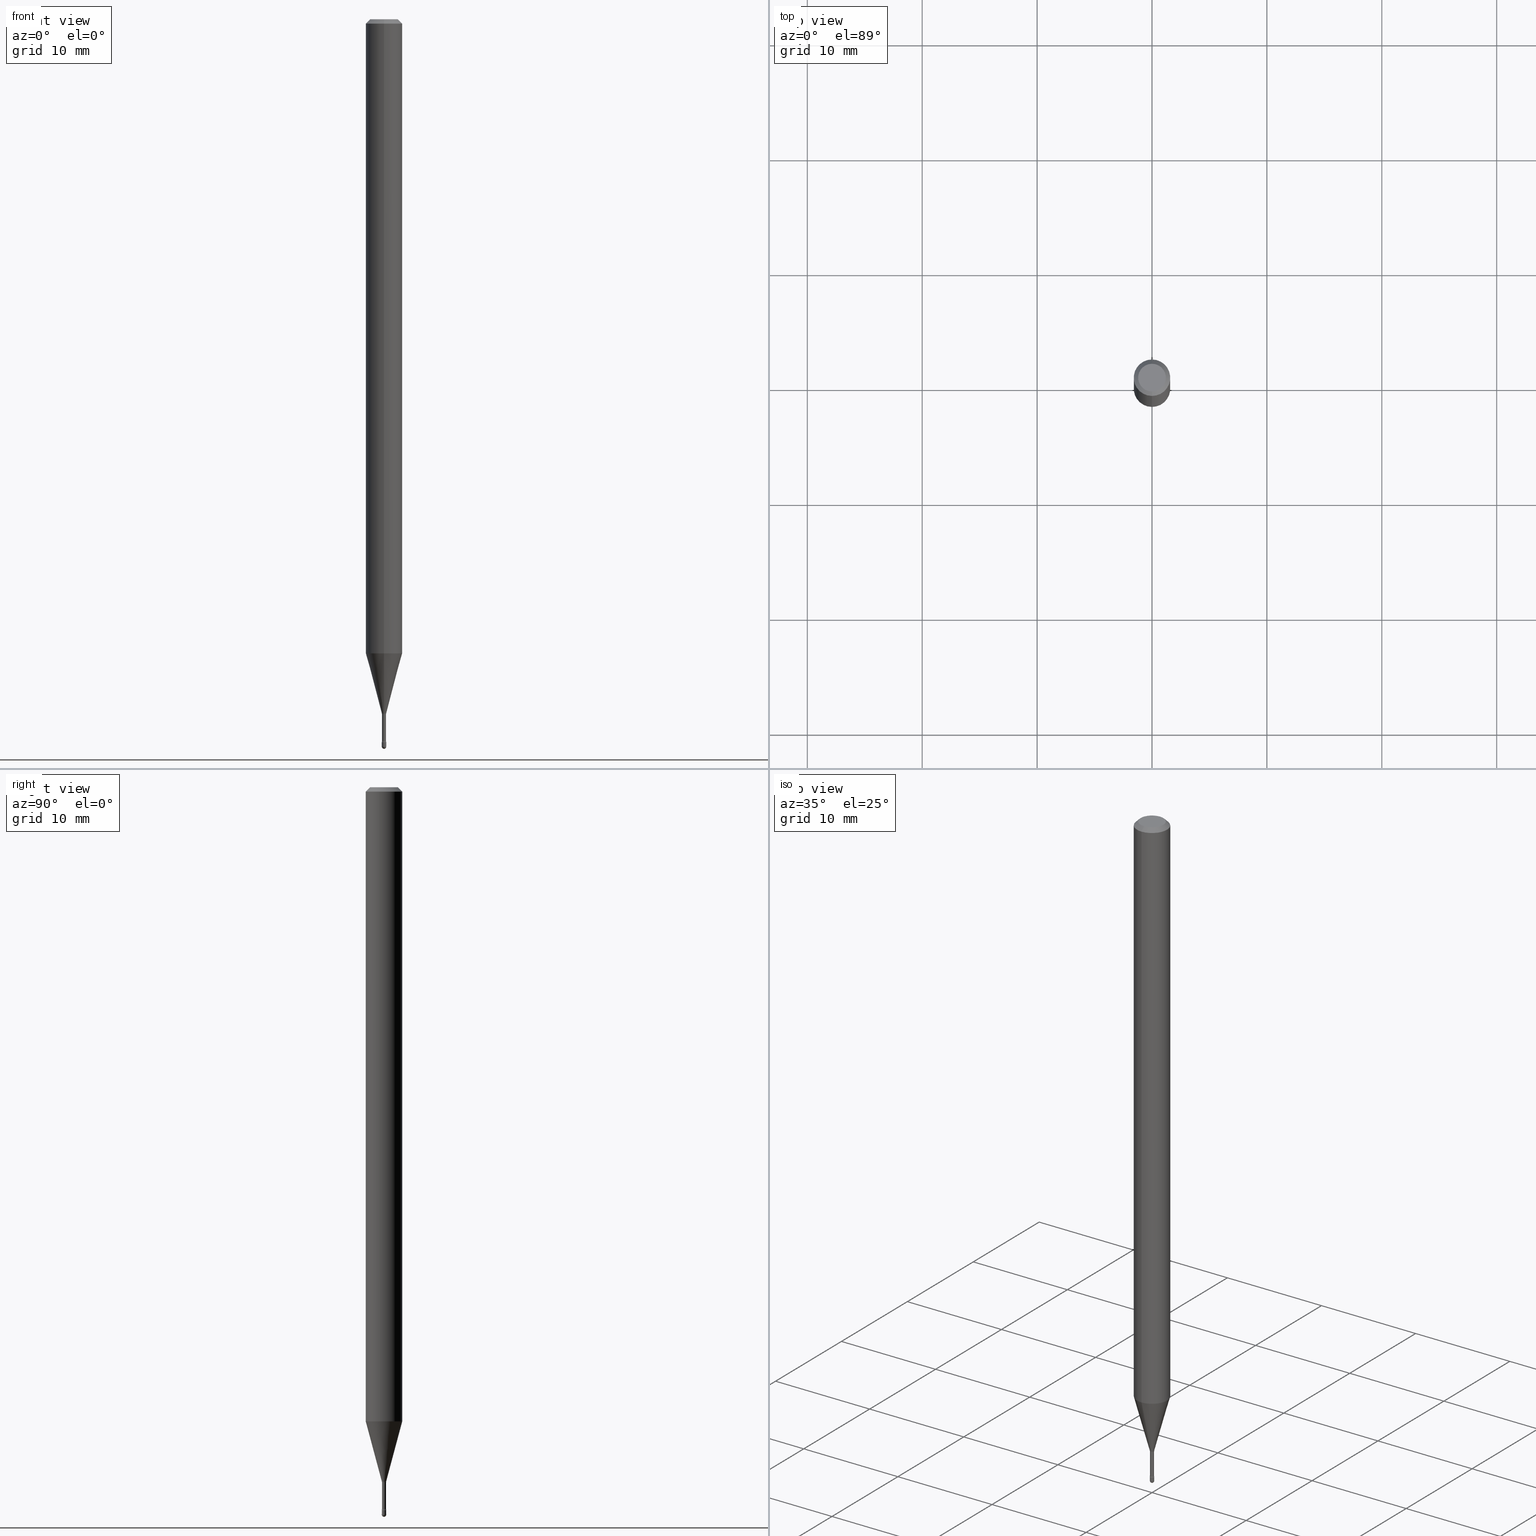
[diagram: canonical four-view strip — front | top / right | iso, engineering-drawing reading convention]
A machine part, canonical four-view strip (front | top / right | iso — engineering-drawing reading convention). The complete STEP part file that produces these views, byte-faithful:
ISO-10303-21;
HEADER;
FILE_DESCRIPTION (( 'STEP AP203' ),
    '1' );
FILE_NAME ('03860.STEP',
    '2024-04-09T20:48:26',
    ( '' ),
    ( '' ),
    'SwSTEP 2.0',
    'SolidWorks 2023',
    '' );
FILE_SCHEMA (( 'CONFIG_CONTROL_DESIGN' ));
ENDSEC;

DATA;
#1 = VERTEX_POINT ( 'NONE', #141 ) ;
#2 = CARTESIAN_POINT ( 'NONE',  ( 2.023716753937236139E-45, -2.888969696203218346E-31, -8.274856523414419713E-17 ) ) ;
#3 = ORIENTED_EDGE ( 'NONE', *, *, #173, .F. ) ;
#4 = CIRCLE ( 'NONE', #65, 0.01500000000000001506 ) ;
#5 = DIRECTION ( 'NONE',  ( 1.000000000000000000, -6.982962677686269077E-15, 0.000000000000000000 ) ) ;
#6 = AXIS2_PLACEMENT_3D ( 'NONE', #297, #158, #130 ) ;
#7 = EDGE_CURVE ( 'NONE', #132, #285, #483, .T. ) ;
#8 = ORIENTED_EDGE ( 'NONE', *, *, #457, .F. ) ;
#9 = CARTESIAN_POINT ( 'NONE',  ( -4.922988687768816941E-17, -0.007049999999999998976, 5.026881147764833957E-16 ) ) ;
#10 = FACE_OUTER_BOUND ( 'NONE', #553, .T. ) ;
#11 = CARTESIAN_POINT ( 'NONE',  ( 3.668237017753114858E-31, -5.237173592603730529E-17, -0.01500000000000008271 ) ) ;
#12 = CARTESIAN_POINT ( 'NONE',  ( -4.364351673553916201E-16, -0.06250000000000000000, 6.962889652497336499E-16 ) ) ;
#13 = CIRCLE ( 'NONE', #325, 0.01500000000000001853 ) ;
#14 = CARTESIAN_POINT ( 'NONE',  ( 6.095330999416453954E-29, -8.702517237066541600E-15, -2.492500000000000160 ) ) ;
#15 = ADVANCED_FACE ( 'NONE', ( #394 ), #513, .T. ) ;
#16 = DIRECTION ( 'NONE',  ( 1.000000000000000000, -6.982962677686268288E-15, 0.000000000000000000 ) ) ;
#17 = DIRECTION ( 'NONE',  ( -2.445468806185136597E-29, 3.491481338843145583E-15, 1.000000000000000000 ) ) ;
#18 = ORIENTED_EDGE ( 'NONE', *, *, #564, .F. ) ;
#19 = CALENDAR_DATE ( 2024, 9, 4 ) ;
#20 = DIRECTION ( 'NONE',  ( 7.105427357601000281E-15, 1.000000000000000000, 0.000000000000000000 ) ) ;
#21 = EDGE_CURVE ( 'NONE', #255, #26, #410, .T. ) ;
#22 = AXIS2_PLACEMENT_3D ( 'NONE', #388, #380, #241 ) ;
#23 = ORIENTED_EDGE ( 'NONE', *, *, #205, .F. ) ;
#24 = APPROVAL_STATUS ( 'not_yet_approved' ) ;
#25 = ORIENTED_EDGE ( 'NONE', *, *, #21, .F. ) ;
#26 = VERTEX_POINT ( 'NONE', #356 ) ;
#27 = ADVANCED_FACE ( 'NONE', ( #538 ), #220, .T. ) ;
#28 = DATE_AND_TIME ( #408, #137 ) ;
#29 = CIRCLE ( 'NONE', #310, 0.06250000000000000000 ) ;
#30 = DIRECTION ( 'NONE',  ( -6.982962677686265922E-15, -1.000000000000000000, 3.483106191921935554E-15 ) ) ;
#31 = AXIS2_PLACEMENT_3D ( 'NONE', #382, #170, #127 ) ;
#32 = ORIENTED_EDGE ( 'NONE', *, *, #480, .T. ) ;
#33 = DIRECTION ( 'NONE',  ( 1.000000000000000000, -6.982962677686266711E-15, 4.876176775795935793E-29 ) ) ;
#34 = CARTESIAN_POINT ( 'NONE',  ( -5.279896712707659243E-17, -0.007561112605672287539, -2.378092501787273161 ) ) ;
#35 = ORIENTED_EDGE ( 'NONE', *, *, #473, .T. ) ;
#36 = DIRECTION ( 'NONE',  ( -6.982962677686265133E-15, -1.000000000000000000, 0.000000000000000000 ) ) ;
#37 = CARTESIAN_POINT ( 'NONE',  ( 5.009326287108704966E-17, 0.007049999999999998976, 4.534586830060087308E-16 ) ) ;
#38 = EDGE_LOOP ( 'NONE', ( #427, #341, #143, #3, #315 ) ) ;
#39 = DIRECTION ( 'NONE',  ( -6.982962677686266711E-15, -1.000000000000000000, 0.000000000000000000 ) ) ;
#40 = CC_DESIGN_PERSON_AND_ORGANIZATION_ASSIGNMENT ( #258, #320, ( #59 ) ) ;
#41 = EDGE_CURVE ( 'NONE', #26, #233, #451, .T. ) ;
#42 = CIRCLE ( 'NONE', #534, 0.007049999999999997241 ) ;
#43 = DIRECTION ( 'NONE',  ( -1.807323732225327378E-15, -0.2588190451025177974, 0.9659258262890690894 ) ) ;
#44 = VERTEX_POINT ( 'NONE', #128 ) ;
#45 = AXIS2_PLACEMENT_3D ( 'NONE', #55, #120, #465 ) ;
#46 = APPROVAL_PERSON_ORGANIZATION ( #497, #392, #438 ) ;
#47 = CARTESIAN_POINT ( 'NONE',  ( 3.668237017753114858E-31, -5.237173592603730529E-17, -0.01500000000000008271 ) ) ;
#48 = DIRECTION ( 'NONE',  ( -2.445491345168729704E-29, 3.491449061735800993E-15, 1.000000000000000000 ) ) ;
#49 = DIRECTION ( 'NONE',  ( -7.105427357601001070E-15, -1.000000000000000000, 0.000000000000000000 ) ) ;
#50 = DIRECTION ( 'NONE',  ( 6.982962677686266711E-15, 1.000000000000000000, 0.000000000000000000 ) ) ;
#51 = CARTESIAN_POINT ( 'NONE',  ( 6.095330999416453954E-29, -8.702517237066541600E-15, -2.492500000000000160 ) ) ;
#52 = DIRECTION ( 'NONE',  ( -6.982962677686265922E-15, -1.000000000000000000, 0.000000000000000000 ) ) ;
#53 = VECTOR ( 'NONE', #268, 39.37007874015748143 ) ;
#54 = LOCAL_TIME ( 16, 48, 26.00000000000000000, #316 ) ;
#55 = CARTESIAN_POINT ( 'NONE',  ( -1.169113584055446105E-44, 1.669184350826100908E-30, 4.780733988912460139E-16 ) ) ;
#56 = APPLICATION_CONTEXT ( 'configuration controlled 3d designs of mechanical parts and assemblies' ) ;
#57 =( NAMED_UNIT ( * ) SI_UNIT ( $, .STERADIAN. ) SOLID_ANGLE_UNIT ( ) );
#58 = DIRECTION ( 'NONE',  ( 6.982962677686265922E-15, 1.000000000000000000, -3.483106191921935554E-15 ) ) ;
#59 = PRODUCT ( '03860', '03860', '', ( #468 ) ) ;
#60 = CARTESIAN_POINT ( 'NONE',  ( 6.057426232920582713E-29, -8.648399276314471045E-15, -2.476999999999999869 ) ) ;
#62 = ADVANCED_FACE ( 'NONE', ( #202 ), #209, .T. ) ;
#61 = DATE_AND_TIME ( #186, #544 ) ;
#63 = CARTESIAN_POINT ( 'NONE',  ( 5.009326287114755776E-17, 0.007049999999991685314, -2.381974787463811083 ) ) ;
#64 = UNCERTAINTY_MEASURE_WITH_UNIT (LENGTH_MEASURE( 1.000000000000000082E-05 ), #429, 'distance_accuracy_value', 'NONE');
#65 = AXIS2_PLACEMENT_3D ( 'NONE', #275, #397, #20 ) ;
#66 = DATE_AND_TIME ( #441, #309 ) ;
#67 = FACE_OUTER_BOUND ( 'NONE', #294, .T. ) ;
#68 = VERTEX_POINT ( 'NONE', #507 ) ;
#69 = PERSON_AND_ORGANIZATION ( #190, #386 ) ;
#70 = ADVANCED_FACE ( 'NONE', ( #511 ), #317, .F. ) ;
#71 = CARTESIAN_POINT ( 'NONE',  ( 5.815604631131429180E-29, -8.302988834086117916E-15, -2.378092501787273161 ) ) ;
#72 = APPROVAL_STATUS ( 'not_yet_approved' ) ;
#73 = AXIS2_PLACEMENT_3D ( 'NONE', #505, #464, #211 ) ;
#74 = EDGE_LOOP ( 'NONE', ( #365, #18, #381, #504 ) ) ;
#75 = APPROVAL_STATUS ( 'not_yet_approved' ) ;
#76 = CIRCLE ( 'NONE', #254, 0.007050000000000001578 ) ;
#77 = LINE ( 'NONE', #518, #101 ) ;
#78 = AXIS2_PLACEMENT_3D ( 'NONE', #112, #354, #146 ) ;
#79 = AXIS2_PLACEMENT_3D ( 'NONE', #423, #344, #171 ) ;
#80 = EDGE_LOOP ( 'NONE', ( #89, #439, #283, #238 ) ) ;
#81 = CYLINDRICAL_SURFACE ( 'NONE', #481, 0.007499999999999998855 ) ;
#82 = DIRECTION ( 'NONE',  ( -2.445491345168729704E-29, 3.491449061735800993E-15, 1.000000000000000000 ) ) ;
#83 = CYLINDRICAL_SURFACE ( 'NONE', #235, 0.007499999999999998855 ) ;
#84 = ORIENTED_EDGE ( 'NONE', *, *, #205, .T. ) ;
#85 = CARTESIAN_POINT ( 'NONE',  ( 5.825045039862220002E-29, -8.316620520024762877E-15, -2.381974787463811083 ) ) ;
#86 = ADVANCED_FACE ( 'NONE', ( #169 ), #134, .T. ) ;
#87 = CARTESIAN_POINT ( 'NONE',  ( -1.169113584055446105E-44, 1.669184350826100908E-30, 4.780733988912460139E-16 ) ) ;
#88 = ADVANCED_BREP_SHAPE_REPRESENTATION ( '03860', ( #244, #436, #557 ), #237 ) ;
#89 = ORIENTED_EDGE ( 'NONE', *, *, #480, .F. ) ;
#90 = DIRECTION ( 'NONE',  ( -6.982962677686265922E-15, -1.000000000000000000, 3.491449061735800993E-15 ) ) ;
#91 = ORIENTED_EDGE ( 'NONE', *, *, #105, .F. ) ;
#92 = CIRCLE ( 'NONE', #154, 0.007499999999999999722 ) ;
#93 = CARTESIAN_POINT ( 'NONE',  ( -5.237222008258649100E-17, -0.007500000000008655125, -2.476999999999999869 ) ) ;
#94 = TOROIDAL_SURFACE ( 'NONE', #213, 0.02205000000000000016, 0.01500000000000002200 ) ;
#95 = CARTESIAN_POINT ( 'NONE',  ( -4.364351673553912750E-16, -0.06250000000000005551, -0.01499999999999986587 ) ) ;
#96 = CARTESIAN_POINT ( 'NONE',  ( 5.815604631131429180E-29, -8.302988834086117916E-15, -2.378092501787273161 ) ) ;
#97 = CARTESIAN_POINT ( 'NONE',  ( 3.316907271900976096E-16, 0.04749999999999999362, 3.181858639610035580E-17 ) ) ;
#98 = CARTESIAN_POINT ( 'NONE',  ( 0.007499999999999998855, -8.727830476773153796E-15, -2.492500000000000160 ) ) ;
#99 = CARTESIAN_POINT ( 'NONE',  ( 6.048564397476087281E-29, -8.635587499476257127E-15, -2.473353426265656907 ) ) ;
#100 = CLOSED_SHELL ( 'NONE', ( #70, #118, #269, #15, #27, #261, #252, #360, #218, #373, #197, #453, #62, #393 ) ) ;
#101 = VECTOR ( 'NONE', #168, 39.37007874015748143 ) ;
#102 = DIRECTION ( 'NONE',  ( -6.982962677686265922E-15, -1.000000000000000000, 3.491449061735800993E-15 ) ) ;
#103 = DIRECTION ( 'NONE',  ( 1.000000000000000000, -7.105427357601001070E-15, 4.926315113261520670E-29 ) ) ;
#104 = CARTESIAN_POINT ( 'NONE',  ( 5.815604631131429180E-29, -8.302988834086117916E-15, -2.378092501787273161 ) ) ;
#105 = EDGE_CURVE ( 'NONE', #251, #406, #460, .T. ) ;
#106 = COORDINATED_UNIVERSAL_TIME_OFFSET ( 5, 0, .BEHIND. ) ;
#107 = DIRECTION ( 'NONE',  ( -2.445491345168729704E-29, 3.491449061735800993E-15, 1.000000000000000000 ) ) ;
#108 = CARTESIAN_POINT ( 'NONE',  ( -5.329070518194628897E-17, -0.007500000000008663799, -2.492500000000000160 ) ) ;
#109 = AXIS2_PLACEMENT_3D ( 'NONE', #96, #387, #52 ) ;
#110 = PRODUCT_DEFINITION ( 'UNKNOWN', '', #378, #533 ) ;
#111 = EDGE_CURVE ( 'NONE', #370, #566, #29, .T. ) ;
#112 = CARTESIAN_POINT ( 'NONE',  ( 2.023716753937236139E-45, -2.888969696203218346E-31, -8.274856523414419713E-17 ) ) ;
#113 = APPLICATION_PROTOCOL_DEFINITION ( 'international standard', 'config_control_design', 1994, #56 ) ;
#114 = ORIENTED_EDGE ( 'NONE', *, *, #501, .T. ) ;
#115 = PERSON_AND_ORGANIZATION ( #190, #386 ) ;
#116 = VECTOR ( 'NONE', #563, 39.37007874015748143 ) ;
#117 = ORIENTED_EDGE ( 'NONE', *, *, #457, .T. ) ;
#118 = ADVANCED_FACE ( 'NONE', ( #332 ), #456, .T. ) ;
#119 = ORIENTED_EDGE ( 'NONE', *, *, #206, .T. ) ;
#120 = DIRECTION ( 'NONE',  ( -2.445491345168729704E-29, 3.491449061735800993E-15, 1.000000000000000000 ) ) ;
#121 = DIRECTION ( 'NONE',  ( -2.445468806185136597E-29, 3.491481338843145583E-15, 1.000000000000000000 ) ) ;
#122 = DIRECTION ( 'NONE',  ( -2.438088387897960049E-29, 3.491481338843145188E-15, 1.000000000000000000 ) ) ;
#123 = VECTOR ( 'NONE', #191, 39.37007874015748143 ) ;
#124 = CARTESIAN_POINT ( 'NONE',  ( 5.314194000194058703E-29, -7.587120556576491989E-15, -2.173057782720305919 ) ) ;
#125 = EDGE_CURVE ( 'NONE', #401, #330, #542, .T. ) ;
#126 = ORIENTED_EDGE ( 'NONE', *, *, #277, .T. ) ;
#127 = DIRECTION ( 'NONE',  ( 6.982962677686265922E-15, 1.000000000000000000, 0.000000000000000000 ) ) ;
#128 = CARTESIAN_POINT ( 'NONE',  ( -4.364351673553386185E-16, -0.06250000000000759115, -2.173057782720305919 ) ) ;
#129 = ORIENTED_EDGE ( 'NONE', *, *, #367, .F. ) ;
#130 = DIRECTION ( 'NONE',  ( -6.982962677686265922E-15, -1.000000000000000000, 0.000000000000000000 ) ) ;
#131 = DIRECTION ( 'NONE',  ( 1.000000000000000000, 0.000000000000000000, 0.000000000000000000 ) ) ;
#132 = VERTEX_POINT ( 'NONE', #476 ) ;
#133 = VECTOR ( 'NONE', #431, 39.37007874015748143 ) ;
#134 = SPHERICAL_SURFACE ( 'NONE', #236, 0.007499999999999925129 ) ;
#135 =( NAMED_UNIT ( * ) PLANE_ANGLE_UNIT ( ) SI_UNIT ( $, .RADIAN. ) );
#136 = FACE_OUTER_BOUND ( 'NONE', #508, .T. ) ;
#137 = LOCAL_TIME ( 16, 48, 26.00000000000000000, #510 ) ;
#138 = EDGE_CURVE ( 'NONE', #330, #44, #555, .T. ) ;
#139 = PLANE ( 'NONE',  #403 ) ;
#140 = DIRECTION ( 'NONE',  ( 1.000000000000000000, -6.982962677686269077E-15, 0.000000000000000000 ) ) ;
#141 = CARTESIAN_POINT ( 'NONE',  ( 4.440892098501156671E-16, 0.06249999999999240885, -2.173057782720306363 ) ) ;
#142 = DIRECTION ( 'NONE',  ( -2.445491345168729704E-29, 3.491449061735800993E-15, 1.000000000000000000 ) ) ;
#143 = ORIENTED_EDGE ( 'NONE', *, *, #313, .F. ) ;
#144 = PERSON_AND_ORGANIZATION ( #190, #386 ) ;
#145 = AXIS2_PLACEMENT_3D ( 'NONE', #414, #82, #248 ) ;
#146 = DIRECTION ( 'NONE',  ( -6.982962677686266711E-15, -1.000000000000000000, 3.491449061735801387E-15 ) ) ;
#147 = ORIENTED_EDGE ( 'NONE', *, *, #180, .F. ) ;
#148 = COORDINATED_UNIVERSAL_TIME_OFFSET ( 5, 0, .BEHIND. ) ;
#149 = ORIENTED_EDGE ( 'NONE', *, *, #153, .F. ) ;
#150 = PERSON_AND_ORGANIZATION_ROLE ( 'design_supplier' ) ;
#151 = CARTESIAN_POINT ( 'NONE',  ( 6.095330999416453954E-29, -8.702517237066541600E-15, -2.492500000000000160 ) ) ;
#152 = ORIENTED_EDGE ( 'NONE', *, *, #306, .F. ) ;
#153 = EDGE_CURVE ( 'NONE', #1, #44, #192, .T. ) ;
#154 = AXIS2_PLACEMENT_3D ( 'NONE', #60, #17, #347 ) ;
#155 = DIRECTION ( 'NONE',  ( 1.000000000000000000, -6.982962677686269077E-15, 0.000000000000000000 ) ) ;
#156 = FACE_OUTER_BOUND ( 'NONE', #38, .T. ) ;
#157 = VERTEX_POINT ( 'NONE', #98 ) ;
#158 = DIRECTION ( 'NONE',  ( -2.445491345168729704E-29, 3.491449061735800993E-15, 1.000000000000000000 ) ) ;
#159 = EDGE_CURVE ( 'NONE', #285, #324, #263, .T. ) ;
#160 = CARTESIAN_POINT ( 'NONE',  ( 6.095330999416453954E-29, -8.702517237066541600E-15, -2.492500000000000160 ) ) ;
#161 = ORIENTED_EDGE ( 'NONE', *, *, #173, .T. ) ;
#162 = CARTESIAN_POINT ( 'NONE',  ( 5.825098727152874033E-29, -8.316543636768855884E-15, -2.381974787463811083 ) ) ;
#163 = CIRCLE ( 'NONE', #351, 0.007050000000000001578 ) ;
#164 = AXIS2_PLACEMENT_3D ( 'NONE', #485, #391, #140 ) ;
#165 = DIRECTION ( 'NONE',  ( -2.445491345168729704E-29, 3.491449061735800993E-15, 1.000000000000000000 ) ) ;
#166 = CIRCLE ( 'NONE', #6, 0.007499999999999999722 ) ;
#167 = EDGE_LOOP ( 'NONE', ( #338, #496 ) ) ;
#168 = DIRECTION ( 'NONE',  ( 4.937700262164548042E-15, 0.7071067811865451302, -0.7071067811865499042 ) ) ;
#169 = FACE_OUTER_BOUND ( 'NONE', #80, .T. ) ;
#170 = DIRECTION ( 'NONE',  ( -1.000000000000000000, 6.982962677686265922E-15, -4.883557194083112901E-29 ) ) ;
#171 = DIRECTION ( 'NONE',  ( -6.982962677686265922E-15, -1.000000000000000000, 3.491449061735801387E-15 ) ) ;
#172 = VERTEX_POINT ( 'NONE', #374 ) ;
#173 = EDGE_CURVE ( 'NONE', #157, #172, #179, .T. ) ;
#174 = AXIS2_PLACEMENT_3D ( 'NONE', #558, #165, #346 ) ;
#175 = CIRCLE ( 'NONE', #215, 0.01500000000000001853 ) ;
#176 = CYLINDRICAL_SURFACE ( 'NONE', #79, 0.06250000000000000000 ) ;
#177 = DIMENSIONAL_EXPONENTS ( 1.000000000000000000, 0.000000000000000000, 0.000000000000000000, 0.000000000000000000, 0.000000000000000000, 0.000000000000000000, 0.000000000000000000 ) ;
#178 = DIRECTION ( 'NONE',  ( 1.839019923739597160E-15, 0.2588190451025245142, 0.9659258262890670910 ) ) ;
#179 = LINE ( 'NONE', #526, #133 ) ;
#180 = EDGE_CURVE ( 'NONE', #132, #474, #222, .T. ) ;
#181 = CARTESIAN_POINT ( 'NONE',  ( -0.007499999999999998855, -8.622167551508499156E-15, -2.492500000000000160 ) ) ;
#182 = DIRECTION ( 'NONE',  ( 2.445491345168729704E-29, -3.491449061735800993E-15, -1.000000000000000000 ) ) ;
#183 = CONICAL_SURFACE ( 'NONE', #472, 0.06250000000000000000, 0.7853981633974483900 ) ;
#184 = AXIS2_PLACEMENT_3D ( 'NONE', #2, #48, #430 ) ;
#185 = DIRECTION ( 'NONE',  ( 2.445491345168729704E-29, -3.491449061735800993E-15, -1.000000000000000000 ) ) ;
#186 = CALENDAR_DATE ( 2024, 9, 4 ) ;
#187 = DIRECTION ( 'NONE',  ( 1.000000000000000000, -6.982962677686265922E-15, 4.883557194083112340E-29 ) ) ;
#188 = CC_DESIGN_PERSON_AND_ORGANIZATION_ASSIGNMENT ( #540, #234, ( #110 ) ) ;
#189 = CALENDAR_DATE ( 2024, 9, 4 ) ;
#190 = PERSON ( 'UNSPECIFIED', 'UNSPECIFIED', 'UNSPECIFIED', ('UNSPECIFIED'), ('UNSPECIFIED'), ('UNSPECIFIED') ) ;
#191 = DIRECTION ( 'NONE',  ( -2.445491345168729704E-29, 3.491449061735800993E-15, 1.000000000000000000 ) ) ;
#192 = CIRCLE ( 'NONE', #336, 0.06250000000000000000 ) ;
#193 = DIRECTION ( 'NONE',  ( -6.982962677686265922E-15, -1.000000000000000000, 0.000000000000000000 ) ) ;
#194 = APPROVAL_PERSON_ORGANIZATION ( #69, #364, #413 ) ;
#195 = ORIENTED_EDGE ( 'NONE', *, *, #223, .F. ) ;
#196 = ORIENTED_EDGE ( 'NONE', *, *, #322, .F. ) ;
#197 = ADVANCED_FACE ( 'NONE', ( #10 ), #139, .F. ) ;
#198 = ORIENTED_EDGE ( 'NONE', *, *, #306, .T. ) ;
#199 = CARTESIAN_POINT ( 'NONE',  ( -1.169113584055446105E-44, 1.669184350826100908E-30, 4.780733988912460139E-16 ) ) ;
#200 = VECTOR ( 'NONE', #43, 39.37007874015748143 ) ;
#201 = ORIENTED_EDGE ( 'NONE', *, *, #7, .T. ) ;
#202 = FACE_OUTER_BOUND ( 'NONE', #469, .T. ) ;
#203 = ORIENTED_EDGE ( 'NONE', *, *, #458, .T. ) ;
#204 = PLANE ( 'NONE',  #342 ) ;
#205 = EDGE_CURVE ( 'NONE', #285, #251, #4, .T. ) ;
#206 = EDGE_CURVE ( 'NONE', #340, #157, #424, .T. ) ;
#207 = ORIENTED_EDGE ( 'NONE', *, *, #528, .F. ) ;
#208 = DIRECTION ( 'NONE',  ( -2.445491345168729704E-29, 3.491449061735800993E-15, 1.000000000000000000 ) ) ;
#209 = CYLINDRICAL_SURFACE ( 'NONE', #45, 0.007049999999999998976 ) ;
#210 = ORIENTED_EDGE ( 'NONE', *, *, #298, .F. ) ;
#211 = DIRECTION ( 'NONE',  ( -6.982962677686265922E-15, -1.000000000000000000, 3.491449061735800993E-15 ) ) ;
#212 = DIRECTION ( 'NONE',  ( -2.445468806185136597E-29, 3.491481338843145583E-15, 1.000000000000000000 ) ) ;
#213 = AXIS2_PLACEMENT_3D ( 'NONE', #85, #554, #90 ) ;
#214 = CIRCLE ( 'NONE', #78, 0.04749999999999999362 ) ;
#215 = AXIS2_PLACEMENT_3D ( 'NONE', #299, #103, #343 ) ;
#216 = ORIENTED_EDGE ( 'NONE', *, *, #551, .T. ) ;
#217 = DIRECTION ( 'NONE',  ( 0.000000000000000000, 0.000000000000000000, 1.000000000000000000 ) ) ;
#218 = ADVANCED_FACE ( 'NONE', ( #541 ), #183, .T. ) ;
#219 = ORIENTED_EDGE ( 'NONE', *, *, #159, .T. ) ;
#220 = CYLINDRICAL_SURFACE ( 'NONE', #560, 0.06250000000000000000 ) ;
#221 = CONICAL_SURFACE ( 'NONE', #523, 0.007561112605663984285, 0.2617993877991498519 ) ;
#222 = LINE ( 'NONE', #9, #377 ) ;
#223 = EDGE_CURVE ( 'NONE', #530, #68, #214, .T. ) ;
#224 = CARTESIAN_POINT ( 'NONE',  ( 3.668237017753114858E-31, -5.237173592603730529E-17, -0.01500000000000008271 ) ) ;
#225 = DIRECTION ( 'NONE',  ( -2.445491345168729704E-29, 3.491449061735800993E-15, 1.000000000000000000 ) ) ;
#226 = LINE ( 'NONE', #12, #123 ) ;
#227 = AXIS2_PLACEMENT_3D ( 'NONE', #99, #225, #489 ) ;
#228 = CARTESIAN_POINT ( 'NONE',  ( -5.279896712707659243E-17, -0.007561112605672287539, -2.378092501787273161 ) ) ;
#229 = APPROVAL_DATE_TIME ( #66, #392 ) ;
#230 = DIRECTION ( 'NONE',  ( -2.445491345168729424E-29, 3.491449061735800993E-15, 1.000000000000000000 ) ) ;
#231 = ORIENTED_EDGE ( 'NONE', *, *, #352, .F. ) ;
#232 = CARTESIAN_POINT ( 'NONE',  ( 5.237222008270756882E-17, 0.007499999999991352126, -2.476999999999999869 ) ) ;
#233 = VERTEX_POINT ( 'NONE', #181 ) ;
#234 = PERSON_AND_ORGANIZATION_ROLE ( 'creator' ) ;
#235 = AXIS2_PLACEMENT_3D ( 'NONE', #477, #384, #475 ) ;
#236 = AXIS2_PLACEMENT_3D ( 'NONE', #160, #293, #369 ) ;
#237 =( GEOMETRIC_REPRESENTATION_CONTEXT ( 3 ) GLOBAL_UNCERTAINTY_ASSIGNED_CONTEXT ( ( #64 ) ) GLOBAL_UNIT_ASSIGNED_CONTEXT ( ( #429, #135, #57 ) ) REPRESENTATION_CONTEXT ( 'NONE', 'WORKASPACE' ) );
#238 = ORIENTED_EDGE ( 'NONE', *, *, #206, .F. ) ;
#239 = ORIENTED_EDGE ( 'NONE', *, *, #105, .T. ) ;
#240 = ORIENTED_EDGE ( 'NONE', *, *, #565, .F. ) ;
#241 = DIRECTION ( 'NONE',  ( -6.982962677686265922E-15, -1.000000000000000000, 0.000000000000000000 ) ) ;
#242 = DIRECTION ( 'NONE',  ( -2.445491345168729704E-29, 3.491449061735800993E-15, 1.000000000000000000 ) ) ;
#243 = AXIS2_PLACEMENT_3D ( 'NONE', #97, #262, #372 ) ;
#244 = MANIFOLD_SOLID_BREP ( 'Body-Move/Copy2[1]', #302 ) ;
#245 = DIRECTION ( 'NONE',  ( -2.445491345168729704E-29, 3.491449061735800993E-15, 1.000000000000000000 ) ) ;
#246 = ORIENTED_EDGE ( 'NONE', *, *, #125, .T. ) ;
#247 = CARTESIAN_POINT ( 'NONE',  ( 5.825098727152874033E-29, -8.316543636768855884E-15, -2.381974787463811083 ) ) ;
#248 = DIRECTION ( 'NONE',  ( -6.982962677686265922E-15, -1.000000000000000000, 0.000000000000000000 ) ) ;
#249 = ORIENTED_EDGE ( 'NONE', *, *, #125, .F. ) ;
#250 = DIRECTION ( 'NONE',  ( -2.445468806185136877E-29, 3.491481338843145188E-15, 1.000000000000000000 ) ) ;
#251 = VERTEX_POINT ( 'NONE', #312 ) ;
#252 = ADVANCED_FACE ( 'NONE', ( #67 ), #385, .T. ) ;
#253 = VECTOR ( 'NONE', #107, 39.37007874015748143 ) ;
#254 = AXIS2_PLACEMENT_3D ( 'NONE', #247, #208, #371 ) ;
#255 = VERTEX_POINT ( 'NONE', #357 ) ;
#256 = DIRECTION ( 'NONE',  ( -1.000000000000000000, 7.105427357601001070E-15, -4.926315508542082329E-29 ) ) ;
#257 = FACE_OUTER_BOUND ( 'NONE', #379, .T. ) ;
#258 = PERSON_AND_ORGANIZATION ( #190, #386 ) ;
#259 = ORIENTED_EDGE ( 'NONE', *, *, #322, .T. ) ;
#260 = PRODUCT_RELATED_PRODUCT_CATEGORY ( 'detail', '', ( #59 ) ) ;
#261 = ADVANCED_FACE ( 'NONE', ( #136 ), #221, .T. ) ;
#262 = DIRECTION ( 'NONE',  ( 2.445491345168729424E-29, -3.491449061735800993E-15, -1.000000000000000000 ) ) ;
#263 = LINE ( 'NONE', #37, #116 ) ;
#264 = AXIS2_PLACEMENT_3D ( 'NONE', #11, #182, #311 ) ;
#265 = CARTESIAN_POINT ( 'NONE',  ( -4.287811248607203282E-16, -0.06250000000000005551, -0.01499999999999986587 ) ) ;
#266 = ORIENTED_EDGE ( 'NONE', *, *, #138, .T. ) ;
#267 = CARTESIAN_POINT ( 'NONE',  ( 4.440892098500625669E-16, 0.06250000000000000000, 2.598578325327585258E-16 ) ) ;
#268 = DIRECTION ( 'NONE',  ( -4.851104656540964275E-15, -0.7071067811865500152, -0.7071067811865450192 ) ) ;
#269 = ADVANCED_FACE ( 'NONE', ( #318 ), #502, .F. ) ;
#270 = AXIS2_PLACEMENT_3D ( 'NONE', #71, #142, #193 ) ;
#271 = AXIS2_PLACEMENT_3D ( 'NONE', #51, #212, #5 ) ;
#272 = CARTESIAN_POINT ( 'NONE',  ( 5.314194000194058703E-29, -7.587120556576491989E-15, -2.173057782720305919 ) ) ;
#273 = ORIENTED_EDGE ( 'NONE', *, *, #321, .F. ) ;
#274 = DATE_AND_TIME ( #189, #54 ) ;
#275 = CARTESIAN_POINT ( 'NONE',  ( 1.566746732351626125E-16, 0.02204999999999137858, -2.473353426265656907 ) ) ;
#276 = PERSON_AND_ORGANIZATION_ROLE ( 'creator' ) ;
#277 = EDGE_CURVE ( 'NONE', #1, #566, #440, .T. ) ;
#278 = EDGE_LOOP ( 'NONE', ( #383, #198, #521, #8 ) ) ;
#279 = SECURITY_CLASSIFICATION_LEVEL ( 'unclassified' ) ;
#280 = AXIS2_PLACEMENT_3D ( 'NONE', #376, #428, #39 ) ;
#281 = AXIS2_PLACEMENT_3D ( 'NONE', #151, #500, #409 ) ;
#282 = CC_DESIGN_APPROVAL ( #545, ( #110 ) ) ;
#283 = ORIENTED_EDGE ( 'NONE', *, *, #353, .F. ) ;
#284 = APPROVAL_DATE_TIME ( #28, #364 ) ;
#285 = VERTEX_POINT ( 'NONE', #437 ) ;
#286 = DIRECTION ( 'NONE',  ( -2.445491345168729704E-29, 3.491449061735800993E-15, 1.000000000000000000 ) ) ;
#287 = FACE_OUTER_BOUND ( 'NONE', #421, .T. ) ;
#288 = DIRECTION ( 'NONE',  ( -2.445491345168729704E-29, 3.491449061735800993E-15, 1.000000000000000000 ) ) ;
#289 = ORIENTED_EDGE ( 'NONE', *, *, #547, .T. ) ;
#290 = DIRECTION ( 'NONE',  ( 1.000000000000000000, -6.982962677686265922E-15, 4.876176775795935793E-29 ) ) ;
#291 = AXIS2_PLACEMENT_3D ( 'NONE', #487, #490, #529 ) ;
#292 = CC_DESIGN_APPROVAL ( #392, ( #378 ) ) ;
#293 = DIRECTION ( 'NONE',  ( -1.000000000000000000, 6.982962677686265922E-15, -4.883557194083112901E-29 ) ) ;
#294 = EDGE_LOOP ( 'NONE', ( #240, #246, #266, #149 ) ) ;
#295 = FACE_OUTER_BOUND ( 'NONE', #327, .T. ) ;
#296 = EDGE_LOOP ( 'NONE', ( #447, #126, #499, #196 ) ) ;
#297 = CARTESIAN_POINT ( 'NONE',  ( 6.057482061982943241E-29, -8.648319325919578515E-15, -2.476999999999999869 ) ) ;
#298 = EDGE_CURVE ( 'NONE', #330, #474, #13, .T. ) ;
#299 = CARTESIAN_POINT ( 'NONE',  ( 1.566746732351603199E-16, 0.02204999999999168389, -2.381974787463811083 ) ) ;
#300 = VERTEX_POINT ( 'NONE', #446 ) ;
#301 = CARTESIAN_POINT ( 'NONE',  ( 6.048564397476087281E-29, -8.635587499476257127E-15, -2.473353426265656907 ) ) ;
#302 = CLOSED_SHELL ( 'NONE', ( #539, #417, #519, #86, #506 ) ) ;
#303 = CIRCLE ( 'NONE', #368, 0.06250000000000000000 ) ;
#304 = APPLICATION_PROTOCOL_DEFINITION ( 'international standard', 'config_control_design', 1994, #390 ) ;
#305 = EDGE_LOOP ( 'NONE', ( #249, #216, #449, #210 ) ) ;
#306 = EDGE_CURVE ( 'NONE', #68, #370, #314, .T. ) ;
#307 = PLANE ( 'NONE',  #243 ) ;
#308 = DIRECTION ( 'NONE',  ( -1.000000000000000000, 6.982962677686265922E-15, -4.883557194083112340E-29 ) ) ;
#309 = LOCAL_TIME ( 16, 48, 26.00000000000000000, #148 ) ;
#310 = AXIS2_PLACEMENT_3D ( 'NONE', #329, #288, #30 ) ;
#311 = DIRECTION ( 'NONE',  ( 6.982962677686265922E-15, 1.000000000000000000, -3.483106191921935554E-15 ) ) ;
#312 = CARTESIAN_POINT ( 'NONE',  ( 5.329070518206811251E-17, 0.007499999999991357330, -2.476999999999999869 ) ) ;
#313 = EDGE_CURVE ( 'NONE', #172, #300, #92, .T. ) ;
#314 = LINE ( 'NONE', #265, #53 ) ;
#315 = ORIENTED_EDGE ( 'NONE', *, *, #353, .T. ) ;
#316 = COORDINATED_UNIVERSAL_TIME_OFFSET ( 5, 0, .BEHIND. ) ;
#317 = TOROIDAL_SURFACE ( 'NONE', #174, 0.02205000000000000016, 0.01500000000000002200 ) ;
#318 = FACE_OUTER_BOUND ( 'NONE', #459, .T. ) ;
#319 = ORIENTED_EDGE ( 'NONE', *, *, #434, .T. ) ;
#320 = PERSON_AND_ORGANIZATION_ROLE ( 'design_owner' ) ;
#321 = EDGE_CURVE ( 'NONE', #300, #172, #395, .T. ) ;
#322 = EDGE_CURVE ( 'NONE', #44, #370, #226, .T. ) ;
#323 = ORIENTED_EDGE ( 'NONE', *, *, #223, .T. ) ;
#324 = VERTEX_POINT ( 'NONE', #63 ) ;
#325 = AXIS2_PLACEMENT_3D ( 'NONE', #495, #308, #482 ) ;
#326 = VECTOR ( 'NONE', #250, 39.37007874015748143 ) ;
#327 = EDGE_LOOP ( 'NONE', ( #23, #419, #319, #203 ) ) ;
#328 = CARTESIAN_POINT ( 'NONE',  ( -0.007499999999999998855, 5.329070518200750581E-17, -3.689201317691178390E-31 ) ) ;
#329 = CARTESIAN_POINT ( 'NONE',  ( 3.668237017753114858E-31, -5.237173592603730529E-17, -0.01500000000000008271 ) ) ;
#330 = VERTEX_POINT ( 'NONE', #228 ) ;
#331 = FACE_OUTER_BOUND ( 'NONE', #167, .T. ) ;
#332 = FACE_OUTER_BOUND ( 'NONE', #361, .T. ) ;
#333 = CARTESIAN_POINT ( 'NONE',  ( 3.840629472727447874E-16, 0.04749999999999999362, -2.485923956665947374E-16 ) ) ;
#334 = EDGE_LOOP ( 'NONE', ( #492, #454, #259, #129 ) ) ;
#335 = LINE ( 'NONE', #328, #326 ) ;
#336 = AXIS2_PLACEMENT_3D ( 'NONE', #124, #418, #337 ) ;
#337 = DIRECTION ( 'NONE',  ( -6.982962677686265922E-15, -1.000000000000000000, 4.370956789862821150E-15 ) ) ;
#338 = ORIENTED_EDGE ( 'NONE', *, *, #313, .T. ) ;
#339 = DIRECTION ( 'NONE',  ( -6.982962677686265922E-15, -1.000000000000000000, 3.491449061735799021E-15 ) ) ;
#340 = VERTEX_POINT ( 'NONE', #108 ) ;
#341 = ORIENTED_EDGE ( 'NONE', *, *, #407, .T. ) ;
#342 = AXIS2_PLACEMENT_3D ( 'NONE', #509, #122, #290 ) ;
#343 = DIRECTION ( 'NONE',  ( 7.105427357601001859E-15, 1.000000000000000000, 0.000000000000000000 ) ) ;
#344 = DIRECTION ( 'NONE',  ( -2.445491345168729704E-29, 3.491449061735800993E-15, 1.000000000000000000 ) ) ;
#345 = LINE ( 'NONE', #524, #404 ) ;
#346 = DIRECTION ( 'NONE',  ( -6.982962677686265922E-15, -1.000000000000000000, 3.491449061735800993E-15 ) ) ;
#347 = DIRECTION ( 'NONE',  ( 1.000000000000000000, -6.982962677686268288E-15, 0.000000000000000000 ) ) ;
#348 = CIRCLE ( 'NONE', #448, 0.007499999999999998855 ) ;
#349 = CARTESIAN_POINT ( 'NONE',  ( 4.440892098501161601E-16, 0.06249999999999995143, -0.01500000000000030129 ) ) ;
#350 = AXIS2_PLACEMENT_3D ( 'NONE', #87, #245, #339 ) ;
#351 = AXIS2_PLACEMENT_3D ( 'NONE', #162, #516, #550 ) ;
#352 = EDGE_CURVE ( 'NONE', #44, #1, #303, .T. ) ;
#353 = EDGE_CURVE ( 'NONE', #157, #26, #442, .T. ) ;
#354 = DIRECTION ( 'NONE',  ( -2.445491345168729704E-29, 3.491449061735800993E-15, 1.000000000000000000 ) ) ;
#355 = APPROVAL_DATE_TIME ( #61, #545 ) ;
#356 = CARTESIAN_POINT ( 'NONE',  ( 5.237222008270768592E-17, 0.007499999999991259318, -2.492500000000000160 ) ) ;
#357 = CARTESIAN_POINT ( 'NONE',  ( 6.113992702821284393E-29, -8.728244104558185096E-15, -2.500000000000000000 ) ) ;
#358 = DIRECTION ( 'NONE',  ( -6.982962677686265922E-15, -1.000000000000000000, 4.370956789862821150E-15 ) ) ;
#359 = CC_DESIGN_DATE_AND_TIME_ASSIGNMENT ( #274, #450, ( #503 ) ) ;
#360 = ADVANCED_FACE ( 'NONE', ( #562 ), #176, .T. ) ;
#361 = EDGE_LOOP ( 'NONE', ( #201, #219, #207, #147 ) ) ;
#362 = COORDINATED_UNIVERSAL_TIME_OFFSET ( 5, 0, .BEHIND. ) ;
#363 = ORIENTED_EDGE ( 'NONE', *, *, #41, .F. ) ;
#364 = APPROVAL ( #24, 'UNSPECIFIED' ) ;
#365 = ORIENTED_EDGE ( 'NONE', *, *, #551, .F. ) ;
#366 = CARTESIAN_POINT ( 'NONE',  ( 6.095330999416453954E-29, -8.702517237066541600E-15, -2.492500000000000160 ) ) ;
#367 = EDGE_CURVE ( 'NONE', #566, #370, #522, .T. ) ;
#368 = AXIS2_PLACEMENT_3D ( 'NONE', #272, #443, #358 ) ;
#369 = DIRECTION ( 'NONE',  ( 6.982962677686265922E-15, 1.000000000000000000, 0.000000000000000000 ) ) ;
#370 = VERTEX_POINT ( 'NONE', #95 ) ;
#371 = DIRECTION ( 'NONE',  ( -6.982962677686265133E-15, -1.000000000000000000, 0.000000000000000000 ) ) ;
#372 = DIRECTION ( 'NONE',  ( 6.982962677686265922E-15, 1.000000000000000000, -3.491449061735800993E-15 ) ) ;
#373 = ADVANCED_FACE ( 'NONE', ( #257 ), #307, .F. ) ;
#374 = CARTESIAN_POINT ( 'NONE',  ( 0.007499999999999999722, -8.700771496397117730E-15, -2.476999999999999869 ) ) ;
#375 = TOROIDAL_SURFACE ( 'NONE', #73, 0.02205000000000001056, 0.01500000000000001506 ) ;
#376 = CARTESIAN_POINT ( 'NONE',  ( -1.539743270429217643E-16, -0.02205000000000864602, -2.473353426265656907 ) ) ;
#377 = VECTOR ( 'NONE', #286, 39.37007874015748143 ) ;
#378 = PRODUCT_DEFINITION_FORMATION_WITH_SPECIFIED_SOURCE ( 'ANY', '', #59, .NOT_KNOWN. ) ;
#379 = EDGE_LOOP ( 'NONE', ( #323, #289 ) ) ;
#380 = DIRECTION ( 'NONE',  ( -2.445491345168729704E-29, 3.491449061735800993E-15, 1.000000000000000000 ) ) ;
#381 = ORIENTED_EDGE ( 'NONE', *, *, #298, .T. ) ;
#382 = CARTESIAN_POINT ( 'NONE',  ( 6.095330999416453954E-29, -8.702517237066541600E-15, -2.492500000000000160 ) ) ;
#383 = ORIENTED_EDGE ( 'NONE', *, *, #547, .F. ) ;
#384 = DIRECTION ( 'NONE',  ( -2.445468806185136597E-29, 3.491481338843145583E-15, 1.000000000000000000 ) ) ;
#385 = CONICAL_SURFACE ( 'NONE', #270, 0.007561112605663984285, 0.2617993877991498519 ) ;
#386 = ORGANIZATION ( 'UNSPECIFIED', 'UNSPECIFIED', '' ) ;
#387 = DIRECTION ( 'NONE',  ( -2.445491345168729704E-29, 3.491449061735800993E-15, 1.000000000000000000 ) ) ;
#388 = CARTESIAN_POINT ( 'NONE',  ( 6.057482061982943241E-29, -8.648319325919578515E-15, -2.476999999999999869 ) ) ;
#389 = FACE_OUTER_BOUND ( 'NONE', #74, .T. ) ;
#390 = APPLICATION_CONTEXT ( 'configuration controlled 3d designs of mechanical parts and assemblies' ) ;
#391 = DIRECTION ( 'NONE',  ( -2.445468806185136597E-29, 3.491481338843145583E-15, 1.000000000000000000 ) ) ;
#392 = APPROVAL ( #75, 'UNSPECIFIED' ) ;
#393 = ADVANCED_FACE ( 'NONE', ( #389 ), #94, .F. ) ;
#394 = FACE_OUTER_BOUND ( 'NONE', #278, .T. ) ;
#395 = CIRCLE ( 'NONE', #549, 0.007499999999999999722 ) ;
#396 = ORIENTED_EDGE ( 'NONE', *, *, #180, .T. ) ;
#397 = DIRECTION ( 'NONE',  ( 1.000000000000000000, -7.105427357601001070E-15, 4.926315113261520670E-29 ) ) ;
#398 = PERSON_AND_ORGANIZATION_ROLE ( 'classification_officer' ) ;
#399 = EDGE_CURVE ( 'NONE', #324, #474, #163, .T. ) ;
#400 = DIRECTION ( 'NONE',  ( -2.445468806185136597E-29, 3.491481338843145583E-15, 1.000000000000000000 ) ) ;
#401 = VERTEX_POINT ( 'NONE', #556 ) ;
#402 = AXIS2_PLACEMENT_3D ( 'NONE', #47, #525, #471 ) ;
#403 = AXIS2_PLACEMENT_3D ( 'NONE', #232, #230, #102 ) ;
#404 = VECTOR ( 'NONE', #178, 39.37007874015748854 ) ;
#405 = ORIENTED_EDGE ( 'NONE', *, *, #399, .F. ) ;
#406 = VERTEX_POINT ( 'NONE', #93 ) ;
#407 = EDGE_CURVE ( 'NONE', #233, #300, #335, .T. ) ;
#408 = CALENDAR_DATE ( 2024, 9, 4 ) ;
#409 = DIRECTION ( 'NONE',  ( 1.000000000000000000, -6.982962677686269077E-15, 0.000000000000000000 ) ) ;
#410 = CIRCLE ( 'NONE', #491, 0.007499999999999925129 ) ;
#411 = DIRECTION ( 'NONE',  ( -2.445468806185136597E-29, 3.491481338843145583E-15, 1.000000000000000000 ) ) ;
#412 = AXIS2_PLACEMENT_3D ( 'NONE', #470, #256, #49 ) ;
#413 = APPROVAL_ROLE ( '' ) ;
#414 = CARTESIAN_POINT ( 'NONE',  ( 5.815604631131429180E-29, -8.302988834086117916E-15, -2.378092501787273161 ) ) ;
#415 = ORIENTED_EDGE ( 'NONE', *, *, #564, .T. ) ;
#416 = FACE_OUTER_BOUND ( 'NONE', #444, .T. ) ;
#417 = ADVANCED_FACE ( 'NONE', ( #416 ), #420, .T. ) ;
#418 = DIRECTION ( 'NONE',  ( -2.445491345168729704E-29, 3.491449061735800993E-15, 1.000000000000000000 ) ) ;
#419 = ORIENTED_EDGE ( 'NONE', *, *, #7, .F. ) ;
#420 = SPHERICAL_SURFACE ( 'NONE', #31, 0.007499999999999925129 ) ;
#421 = EDGE_LOOP ( 'NONE', ( #515, #114, #119, #161, #273 ) ) ;
#422 = ORIENTED_EDGE ( 'NONE', *, *, #565, .T. ) ;
#423 = CARTESIAN_POINT ( 'NONE',  ( -1.169113584055446105E-44, 1.669184350826100908E-30, 4.780733988912460139E-16 ) ) ;
#424 = CIRCLE ( 'NONE', #164, 0.007499999999999998855 ) ;
#425 = CIRCLE ( 'NONE', #184, 0.04749999999999999362 ) ;
#426 =( LENGTH_UNIT ( ) NAMED_UNIT ( * ) SI_UNIT ( $, .METRE. ) );
#427 = ORIENTED_EDGE ( 'NONE', *, *, #41, .T. ) ;
#428 = DIRECTION ( 'NONE',  ( -1.000000000000000000, 6.982962677686265922E-15, -4.883557194083112340E-29 ) ) ;
#429 =( CONVERSION_BASED_UNIT ( 'INCH', #527 ) LENGTH_UNIT ( ) NAMED_UNIT ( #177 ) );
#430 = DIRECTION ( 'NONE',  ( -6.982962677686266711E-15, -1.000000000000000000, 3.491449061735801387E-15 ) ) ;
#431 = DIRECTION ( 'NONE',  ( -2.445468806185136877E-29, 3.491481338843145188E-15, 1.000000000000000000 ) ) ;
#432 = LOCAL_TIME ( 16, 48, 26.00000000000000000, #106 ) ;
#433 = CARTESIAN_POINT ( 'NONE',  ( 6.057426232920582713E-29, -8.648399276314471045E-15, -2.476999999999999869 ) ) ;
#434 = EDGE_CURVE ( 'NONE', #132, #406, #531, .T. ) ;
#435 = ORIENTED_EDGE ( 'NONE', *, *, #458, .F. ) ;
#436 = MANIFOLD_SOLID_BREP ( 'Body-Move/Copy2[2]', #100 ) ;
#437 = CARTESIAN_POINT ( 'NONE',  ( 5.169198402660785362E-17, 0.007049999999991361788, -2.473353426265656907 ) ) ;
#438 = APPROVAL_ROLE ( '' ) ;
#439 = ORIENTED_EDGE ( 'NONE', *, *, #21, .T. ) ;
#440 = LINE ( 'NONE', #267, #253 ) ;
#441 = CALENDAR_DATE ( 2024, 9, 4 ) ;
#442 = CIRCLE ( 'NONE', #271, 0.007499999999999998855 ) ;
#443 = DIRECTION ( 'NONE',  ( -2.445491345168729704E-29, 3.491449061735800993E-15, 1.000000000000000000 ) ) ;
#444 = EDGE_LOOP ( 'NONE', ( #25, #32, #466, #363 ) ) ;
#445 = APPROVAL_ROLE ( '' ) ;
#446 = CARTESIAN_POINT ( 'NONE',  ( -0.007500000000000001457, -8.622167551508499156E-15, -2.476999999999999869 ) ) ;
#447 = ORIENTED_EDGE ( 'NONE', *, *, #352, .T. ) ;
#448 = AXIS2_PLACEMENT_3D ( 'NONE', #366, #121, #155 ) ;
#449 = ORIENTED_EDGE ( 'NONE', *, *, #399, .T. ) ;
#450 = DATE_TIME_ROLE ( 'classification_date' ) ;
#451 = CIRCLE ( 'NONE', #281, 0.007499999999999998855 ) ;
#452 = CC_DESIGN_DATE_AND_TIME_ASSIGNMENT ( #543, #537, ( #110 ) ) ;
#453 = ADVANCED_FACE ( 'NONE', ( #295 ), #375, .F. ) ;
#454 = ORIENTED_EDGE ( 'NONE', *, *, #153, .T. ) ;
#455 = CARTESIAN_POINT ( 'NONE',  ( 0.000000000000000000, 0.000000000000000000, 0.000000000000000000 ) ) ;
#456 = CYLINDRICAL_SURFACE ( 'NONE', #350, 0.007049999999999998976 ) ;
#457 = EDGE_CURVE ( 'NONE', #530, #566, #77, .T. ) ;
#458 = EDGE_CURVE ( 'NONE', #406, #251, #166, .T. ) ;
#459 = EDGE_LOOP ( 'NONE', ( #512, #84, #239, #559 ) ) ;
#460 = CIRCLE ( 'NONE', #22, 0.007499999999999999722 ) ;
#461 = CARTESIAN_POINT ( 'NONE',  ( -4.922988687762993545E-17, -0.007050000000008317842, -2.381974787463811083 ) ) ;
#462 = APPROVAL_PERSON_ORGANIZATION ( #486, #545, #445 ) ;
#463 = ORIENTED_EDGE ( 'NONE', *, *, #138, .F. ) ;
#464 = DIRECTION ( 'NONE',  ( -2.445491345168729704E-29, 3.491449061735800993E-15, 1.000000000000000000 ) ) ;
#465 = DIRECTION ( 'NONE',  ( -6.982962677686265922E-15, -1.000000000000000000, 3.491449061735799021E-15 ) ) ;
#466 = ORIENTED_EDGE ( 'NONE', *, *, #501, .F. ) ;
#467 = CC_DESIGN_PERSON_AND_ORGANIZATION_ASSIGNMENT ( #493, #276, ( #378 ) ) ;
#468 = MECHANICAL_CONTEXT ( 'NONE', #390, 'mechanical' ) ;
#469 = EDGE_LOOP ( 'NONE', ( #517, #35, #396, #405 ) ) ;
#470 = CARTESIAN_POINT ( 'NONE',  ( 6.095330999416453954E-29, -8.702517237066541600E-15, -2.492500000000000160 ) ) ;
#471 = DIRECTION ( 'NONE',  ( -6.982962677686265922E-15, -1.000000000000000000, 3.483106191921935554E-15 ) ) ;
#472 = AXIS2_PLACEMENT_3D ( 'NONE', #224, #185, #58 ) ;
#473 = EDGE_CURVE ( 'NONE', #285, #132, #42, .T. ) ;
#474 = VERTEX_POINT ( 'NONE', #461 ) ;
#475 = DIRECTION ( 'NONE',  ( 1.000000000000000000, -6.982962677686266711E-15, 4.876176775795935793E-29 ) ) ;
#476 = CARTESIAN_POINT ( 'NONE',  ( -4.922988687762766748E-17, -0.007050000000008632695, -2.473353426265656907 ) ) ;
#477 = CARTESIAN_POINT ( 'NONE',  ( 0.000000000000000000, 0.000000000000000000, 0.000000000000000000 ) ) ;
#478 = ORIENTED_EDGE ( 'NONE', *, *, #367, .T. ) ;
#479 = CC_DESIGN_PERSON_AND_ORGANIZATION_ASSIGNMENT ( #115, #150, ( #378 ) ) ;
#480 = EDGE_CURVE ( 'NONE', #255, #340, #484, .T. ) ;
#481 = AXIS2_PLACEMENT_3D ( 'NONE', #455, #411, #33 ) ;
#482 = DIRECTION ( 'NONE',  ( -6.982962677686267499E-15, -1.000000000000000000, 0.000000000000000000 ) ) ;
#483 = CIRCLE ( 'NONE', #227, 0.007049999999999997241 ) ;
#484 = CIRCLE ( 'NONE', #412, 0.007499999999999925129 ) ;
#485 = CARTESIAN_POINT ( 'NONE',  ( 6.095330999416453954E-29, -8.702517237066541600E-15, -2.492500000000000160 ) ) ;
#486 = PERSON_AND_ORGANIZATION ( #190, #386 ) ;
#487 = CARTESIAN_POINT ( 'NONE',  ( 6.048508650603792991E-29, -8.635667332170297409E-15, -2.473353426265656907 ) ) ;
#488 = CC_DESIGN_PERSON_AND_ORGANIZATION_ASSIGNMENT ( #144, #398, ( #503 ) ) ;
#489 = DIRECTION ( 'NONE',  ( -6.982962677686265133E-15, -1.000000000000000000, 0.000000000000000000 ) ) ;
#490 = DIRECTION ( 'NONE',  ( -2.445491345168729704E-29, 3.491449061735800993E-15, 1.000000000000000000 ) ) ;
#491 = AXIS2_PLACEMENT_3D ( 'NONE', #14, #187, #50 ) ;
#492 = ORIENTED_EDGE ( 'NONE', *, *, #277, .F. ) ;
#493 = PERSON_AND_ORGANIZATION ( #190, #386 ) ;
#494 = CIRCLE ( 'NONE', #109, 0.007561112605663984285 ) ;
#495 = CARTESIAN_POINT ( 'NONE',  ( -1.539743270429238843E-16, -0.02205000000000831295, -2.381974787463811083 ) ) ;
#496 = ORIENTED_EDGE ( 'NONE', *, *, #321, .T. ) ;
#497 = PERSON_AND_ORGANIZATION ( #190, #386 ) ;
#498 = DIRECTION ( 'NONE',  ( -2.445491345168729704E-29, 3.491449061735800993E-15, 1.000000000000000000 ) ) ;
#499 = ORIENTED_EDGE ( 'NONE', *, *, #111, .F. ) ;
#500 = DIRECTION ( 'NONE',  ( -2.445468806185136597E-29, 3.491481338843145583E-15, 1.000000000000000000 ) ) ;
#501 = EDGE_CURVE ( 'NONE', #233, #340, #348, .T. ) ;
#502 = TOROIDAL_SURFACE ( 'NONE', #291, 0.02205000000000001056, 0.01500000000000001506 ) ;
#503 = SECURITY_CLASSIFICATION ( '', '', #279 ) ;
#504 = ORIENTED_EDGE ( 'NONE', *, *, #528, .T. ) ;
#505 = CARTESIAN_POINT ( 'NONE',  ( 6.048508650603792991E-29, -8.635667332170297409E-15, -2.473353426265656907 ) ) ;
#506 = ADVANCED_FACE ( 'NONE', ( #287 ), #81, .T. ) ;
#507 = CARTESIAN_POINT ( 'NONE',  ( -3.773273898774340269E-16, -0.04749999999999999362, 8.309526519830634313E-17 ) ) ;
#508 = EDGE_LOOP ( 'NONE', ( #415, #422, #231, #463 ) ) ;
#509 = CARTESIAN_POINT ( 'NONE',  ( 6.057426232920582713E-29, -8.648399276314471045E-15, -2.476999999999999869 ) ) ;
#510 = COORDINATED_UNIVERSAL_TIME_OFFSET ( 5, 0, .BEHIND. ) ;
#511 = FACE_OUTER_BOUND ( 'NONE', #305, .T. ) ;
#512 = ORIENTED_EDGE ( 'NONE', *, *, #473, .F. ) ;
#513 = CONICAL_SURFACE ( 'NONE', #264, 0.06250000000000000000, 0.7853981633974483900 ) ;
#514 = CC_DESIGN_SECURITY_CLASSIFICATION ( #503, ( #378 ) ) ;
#515 = ORIENTED_EDGE ( 'NONE', *, *, #407, .F. ) ;
#516 = DIRECTION ( 'NONE',  ( -2.445491345168729704E-29, 3.491449061735800993E-15, 1.000000000000000000 ) ) ;
#517 = ORIENTED_EDGE ( 'NONE', *, *, #159, .F. ) ;
#518 = CARTESIAN_POINT ( 'NONE',  ( 4.364351673553919652E-16, 0.06249999999999995143, -0.01500000000000030129 ) ) ;
#519 = ADVANCED_FACE ( 'NONE', ( #331 ), #204, .T. ) ;
#520 = CARTESIAN_POINT ( 'NONE',  ( 0.000000000000000000, 0.000000000000000000, 0.000000000000000000 ) ) ;
#521 = ORIENTED_EDGE ( 'NONE', *, *, #111, .T. ) ;
#522 = CIRCLE ( 'NONE', #402, 0.06250000000000000000 ) ;
#523 = AXIS2_PLACEMENT_3D ( 'NONE', #104, #536, #532 ) ;
#524 = CARTESIAN_POINT ( 'NONE',  ( 5.372493636224481749E-17, 0.007561112605655680163, -2.378092501787273161 ) ) ;
#525 = DIRECTION ( 'NONE',  ( -2.445491345168729704E-29, 3.491449061735800993E-15, 1.000000000000000000 ) ) ;
#526 = CARTESIAN_POINT ( 'NONE',  ( 0.007499999999999998855, -5.237222008264699293E-17, 3.657132581846951319E-31 ) ) ;
#528 = EDGE_CURVE ( 'NONE', #474, #324, #76, .T. ) ;
#527 = LENGTH_MEASURE_WITH_UNIT ( LENGTH_MEASURE( 0.02539999999999999897 ), #426 );
#529 = DIRECTION ( 'NONE',  ( -6.982962677686265922E-15, -1.000000000000000000, 3.491449061735800993E-15 ) ) ;
#530 = VERTEX_POINT ( 'NONE', #333 ) ;
#531 = CIRCLE ( 'NONE', #280, 0.01500000000000001506 ) ;
#532 = DIRECTION ( 'NONE',  ( -6.982962677686265922E-15, -1.000000000000000000, 0.000000000000000000 ) ) ;
#533 = DESIGN_CONTEXT ( 'detailed design', #56, 'design' ) ;
#534 = AXIS2_PLACEMENT_3D ( 'NONE', #301, #242, #36 ) ;
#535 = PRODUCT_DEFINITION_SHAPE ( 'NONE', 'NONE',  #110 ) ;
#536 = DIRECTION ( 'NONE',  ( -2.445491345168729704E-29, 3.491449061735800993E-15, 1.000000000000000000 ) ) ;
#537 = DATE_TIME_ROLE ( 'creation_date' ) ;
#538 = FACE_OUTER_BOUND ( 'NONE', #296, .T. ) ;
#539 = ADVANCED_FACE ( 'NONE', ( #156 ), #83, .T. ) ;
#540 = PERSON_AND_ORGANIZATION ( #190, #386 ) ;
#541 = FACE_OUTER_BOUND ( 'NONE', #548, .T. ) ;
#542 = CIRCLE ( 'NONE', #145, 0.007561112605663984285 ) ;
#543 = DATE_AND_TIME ( #19, #432 ) ;
#544 = LOCAL_TIME ( 16, 48, 26.00000000000000000, #362 ) ;
#545 = APPROVAL ( #72, 'UNSPECIFIED' ) ;
#546 = DIRECTION ( 'NONE',  ( -6.982962677686265922E-15, -1.000000000000000000, 3.491449061735801387E-15 ) ) ;
#547 = EDGE_CURVE ( 'NONE', #68, #530, #425, .T. ) ;
#548 = EDGE_LOOP ( 'NONE', ( #152, #195, #117, #478 ) ) ;
#549 = AXIS2_PLACEMENT_3D ( 'NONE', #433, #400, #16 ) ;
#550 = DIRECTION ( 'NONE',  ( -6.982962677686265133E-15, -1.000000000000000000, 0.000000000000000000 ) ) ;
#551 = EDGE_CURVE ( 'NONE', #401, #324, #175, .T. ) ;
#552 = SHAPE_DEFINITION_REPRESENTATION ( #535, #88 ) ;
#553 = EDGE_LOOP ( 'NONE', ( #435, #91 ) ) ;
#554 = DIRECTION ( 'NONE',  ( -2.445491345168729704E-29, 3.491449061735800993E-15, 1.000000000000000000 ) ) ;
#555 = LINE ( 'NONE', #34, #200 ) ;
#556 = CARTESIAN_POINT ( 'NONE',  ( 2.489070731061804118E-16, 0.007561112605655680163, -2.378092501787273161 ) ) ;
#557 = AXIS2_PLACEMENT_3D ( 'NONE', #520, #217, #131 ) ;
#558 = CARTESIAN_POINT ( 'NONE',  ( 5.825045039862220002E-29, -8.316620520024762877E-15, -2.381974787463811083 ) ) ;
#559 = ORIENTED_EDGE ( 'NONE', *, *, #434, .F. ) ;
#560 = AXIS2_PLACEMENT_3D ( 'NONE', #199, #498, #546 ) ;
#561 = CC_DESIGN_APPROVAL ( #364, ( #503 ) ) ;
#562 = FACE_OUTER_BOUND ( 'NONE', #334, .T. ) ;
#563 = DIRECTION ( 'NONE',  ( -2.445491345168729704E-29, 3.491449061735800993E-15, 1.000000000000000000 ) ) ;
#564 = EDGE_CURVE ( 'NONE', #330, #401, #494, .T. ) ;
#565 = EDGE_CURVE ( 'NONE', #401, #1, #345, .T. ) ;
#566 = VERTEX_POINT ( 'NONE', #349 ) ;
ENDSEC;
END-ISO-10303-21;
